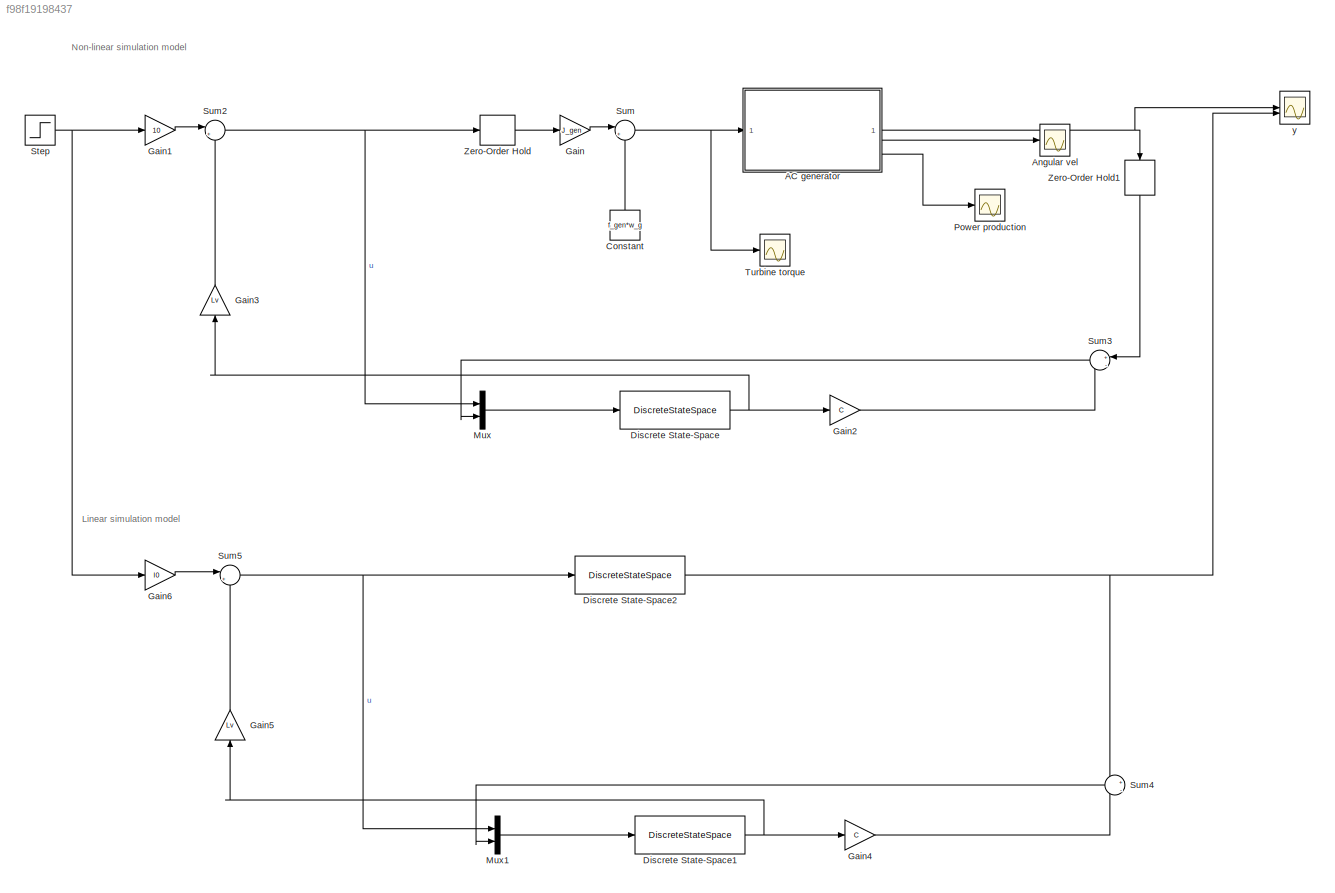
MODEL slx_f98f19198437
KIND model
CONFIG AbsTol = auto
CONFIG EnableMultiTasking = off
CONFIG FixedStep = auto
CONFIG MaxStep = 1e-3
CONFIG MinStep = auto
CONFIG RelTol = 1e-3
CONFIG SampleTimeConstraint = Unconstrained
CONFIG SolverName = ode15s
CONFIG StartTime = 0.0
CONFIG StopTime = 12
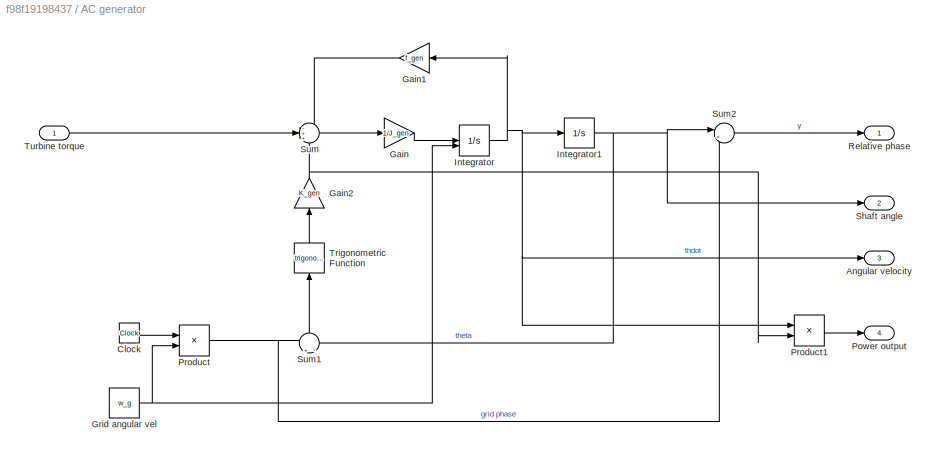
BLOCK [SubSystem] AC generator
BLOCK [Outport] AC generator/Angular velocity
  Port = 3
BLOCK [Clock] AC generator/Clock
BLOCK [Gain] AC generator/Gain
  Gain = 1/J_gen
BLOCK [Gain] AC generator/Gain1
  Gain = f_gen
  NameLocation = top
BLOCK [Gain] AC generator/Gain2
  Gain = K_gen
  NameLocation = right
BLOCK [Constant] AC generator/Grid angular vel
  Value = w_g
BLOCK [Integrator] AC generator/Integrator
  InitialConditionSource = external
BLOCK [Integrator] AC generator/Integrator1
BLOCK [Outport] AC generator/Power output
  Port = 4
BLOCK [Product] AC generator/Product
BLOCK [Product] AC generator/Product1
BLOCK [Outport] AC generator/Relative phase
BLOCK [Outport] AC generator/Shaft angle
  Port = 2
BLOCK [Sum] AC generator/Sum
  Inputs = -++
BLOCK [Sum] AC generator/Sum1
  Inputs = +|-
  NameLocation = right
BLOCK [Sum] AC generator/Sum2
  Inputs = |+-
BLOCK [Trigonometry] AC generator/Trigonometric Function
  NameLocation = right
BLOCK [Inport] AC generator/Turbine torque
BLOCK [Scope] Angular vel
  Floating = off
  NumInputPorts = 1
  ScopeSpecificationString = Simulink.scopes.TimeScopeBlockCfg('CurrentConfiguration', extmgr.ConfigurationSet(extmgr.Configuration('Core','General UI',true),extmgr.Configuration('Core','Source UI',true),extmgr.Configuration('Sources','WiredSimulink',true,'DataLoggingVariableName','ScopeData1'),extmgr.Configuration('Visuals','Time Domain',true,'SerializedDisplays',{struct('MinYLimReal','372.86212','MaxYLimReal','381.57307','Y...<+1473ch>
BLOCK [Constant] Constant
  NameLocation = right
  Value = f_gen*w_g
BLOCK [DiscreteStateSpace] Discrete State-Space
  A = Phi
  B = [Gamma, Kv]
  C = eye(n)
  D = zeros(n, 2)
  SampleTime = h
BLOCK [DiscreteStateSpace] Discrete State-Space1
  A = Phi
  B = [Gamma, Kv]
  C = eye(n)
  D = zeros(n, 2)
  SampleTime = h
BLOCK [DiscreteStateSpace] Discrete State-Space2
  A = Phi
  B = Gamma
  C = C
  D = D
  SampleTime = h
BLOCK [Gain] Gain
  Gain = J_gen
BLOCK [Gain] Gain1
  Gain = 10
BLOCK [Gain] Gain2
  Gain = C
  Multiplication = Matrix(K*u) (u vector)
BLOCK [Gain] Gain3
  Gain = Lv
  Multiplication = Matrix(K*u) (u vector)
  NameLocation = right
BLOCK [Gain] Gain4
  Gain = C
  Multiplication = Matrix(K*u) (u vector)
BLOCK [Gain] Gain5
  Gain = Lv
  Multiplication = Matrix(K*u) (u vector)
  NameLocation = right
BLOCK [Gain] Gain6
  Gain = l0
BLOCK [Mux] Mux
  DisplayOption = bar
  Inputs = 2
BLOCK [Mux] Mux1
  DisplayOption = bar
  Inputs = 2
BLOCK [Scope] Power production
  Floating = off
  NumInputPorts = 1
  ScopeSpecificationString = Simulink.scopes.TimeScopeBlockCfg('CurrentConfiguration', extmgr.ConfigurationSet(extmgr.Configuration('Core','General UI',true),extmgr.Configuration('Core','Source UI',true),extmgr.Configuration('Sources','WiredSimulink',true,'DataLoggingVariableName','ScopeData2'),extmgr.Configuration('Visuals','Time Domain',true,'SerializedDisplays',{struct('MinYLimReal','-117411511.98523','MaxYLimReal','130457...<+1532ch>
BLOCK [Step] Step
  After = 0.3
  SampleTime = 0
BLOCK [Sum] Sum
  Inputs = |++
BLOCK [Sum] Sum2
  Inputs = |+-
BLOCK [Sum] Sum3
  Inputs = +|-
  NameLocation = top
BLOCK [Sum] Sum4
  Inputs = +|-
  NameLocation = top
BLOCK [Sum] Sum5
  Inputs = |+-
BLOCK [Scope] Turbine torque
  Floating = off
  NumInputPorts = 1
  ScopeSpecificationString = Simulink.scopes.TimeScopeBlockCfg('CurrentConfiguration', extmgr.ConfigurationSet(extmgr.Configuration('Core','General UI',true),extmgr.Configuration('Core','Source UI',true),extmgr.Configuration('Sources','WiredSimulink',true,'DataLoggingVariableName','ScopeData4'),extmgr.Configuration('Visuals','Time Domain',true,'SerializedDisplays',{struct('MinYLimReal','1323.43839','MaxYLimReal','4004.54882',...<+1473ch>
BLOCK [ZeroOrderHold] Zero-Order Hold
  SampleTime = h
BLOCK [ZeroOrderHold] Zero-Order Hold1
  NameLocation = left
  SampleTime = h
BLOCK [Scope] y
  Floating = off
  NumInputPorts = 2
  ScopeSpecificationString = Simulink.scopes.TimeScopeBlockCfg('CurrentConfiguration', extmgr.ConfigurationSet(extmgr.Configuration('Core','General UI',true),extmgr.Configuration('Core','Source UI',true),extmgr.Configuration('Sources','WiredSimulink',true),extmgr.Configuration('Visuals','Time Domain',true,'SerializedDisplays',{struct('MinYLimReal','-0.05221','MaxYLimReal','0.46986','YLabelReal','','MinYLimMag','0.00000','MaxY...<+1732ch>
ANNOTATION (root): Linear simulation model
ANNOTATION (root): Non-linear simulation model
LINE AC generator/Clock:1 -> AC generator/Product:1
LINE AC generator/Gain1:1 -> AC generator/Sum:1
NET AC generator/Gain2:1 -> AC generator/Product1:2, AC generator/Sum:3
LINE AC generator/Gain:1 -> AC generator/Integrator:1
NET AC generator/Grid angular vel:1 -> AC generator/Integrator:2, AC generator/Product:2
NET AC generator/Integrator1:1 -> AC generator/Shaft angle:1, AC generator/Sum1:2, AC generator/Sum2:1
NET AC generator/Integrator:1 -> AC generator/Angular velocity:1, AC generator/Gain1:1, AC generator/Integrator1:1, AC generator/Product1:1
LINE AC generator/Product1:1 -> AC generator/Power output:1
NET AC generator/Product:1 -> AC generator/Sum1:1, AC generator/Sum2:2
LINE AC generator/Sum1:1 -> AC generator/Trigonometric Function:1
LINE AC generator/Sum2:1 -> AC generator/Relative phase:1
LINE AC generator/Sum:1 -> AC generator/Gain:1
LINE AC generator/Trigonometric Function:1 -> AC generator/Gain2:1
LINE AC generator/Turbine torque:1 -> AC generator/Sum:2
NET AC generator:1 -> Zero-Order Hold1:1, y:1
LINE AC generator:3 -> Angular vel:1
LINE AC generator:4 -> Power production:1
LINE Constant:1 -> Sum:2
NET Discrete State-Space1:1 -> Gain4:1, Gain5:1
NET Discrete State-Space2:1 -> Sum4:1, y:2
NET Discrete State-Space:1 -> Gain2:1, Gain3:1
LINE Gain1:1 -> Sum2:1
LINE Gain2:1 -> Sum3:2
LINE Gain3:1 -> Sum2:2
LINE Gain4:1 -> Sum4:2
LINE Gain5:1 -> Sum5:2
LINE Gain6:1 -> Sum5:1
LINE Gain:1 -> Sum:1
LINE Mux1:1 -> Discrete State-Space1:1
LINE Mux:1 -> Discrete State-Space:1
NET Step:1 -> Gain1:1, Gain6:1
NET Sum2:1 -> Mux:1, Zero-Order Hold:1
LINE Sum3:1 -> Mux:2
LINE Sum4:1 -> Mux1:2
NET Sum5:1 -> Discrete State-Space2:1, Mux1:1
NET Sum:1 -> AC generator:1, Turbine torque:1
LINE Zero-Order Hold1:1 -> Sum3:1
LINE Zero-Order Hold:1 -> Gain:1
note: NET lines group one-source signal fan-out (src -> all destinations, sorted); 1:1 wires keep LINE
